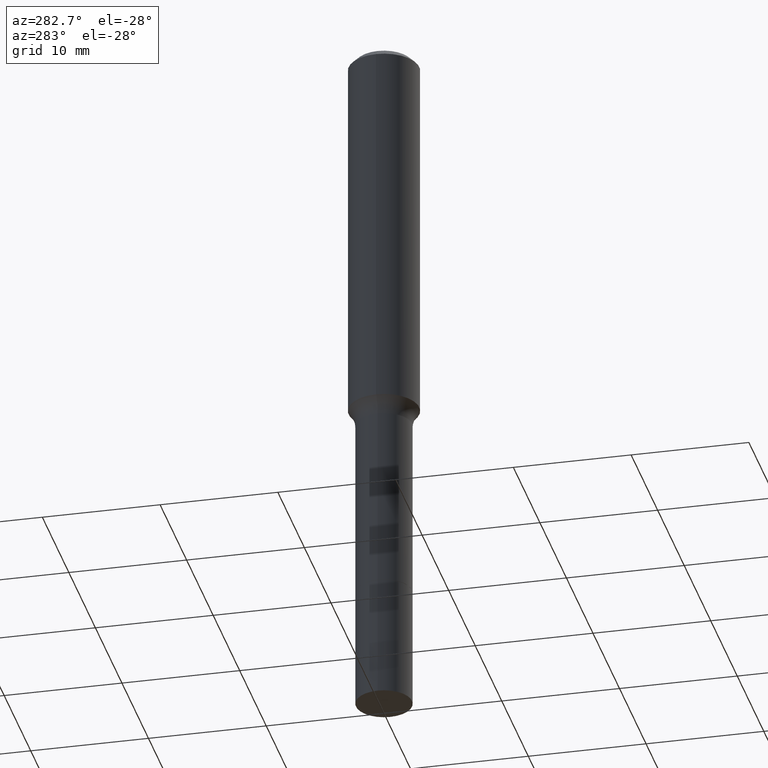
[diagram: clean part render]
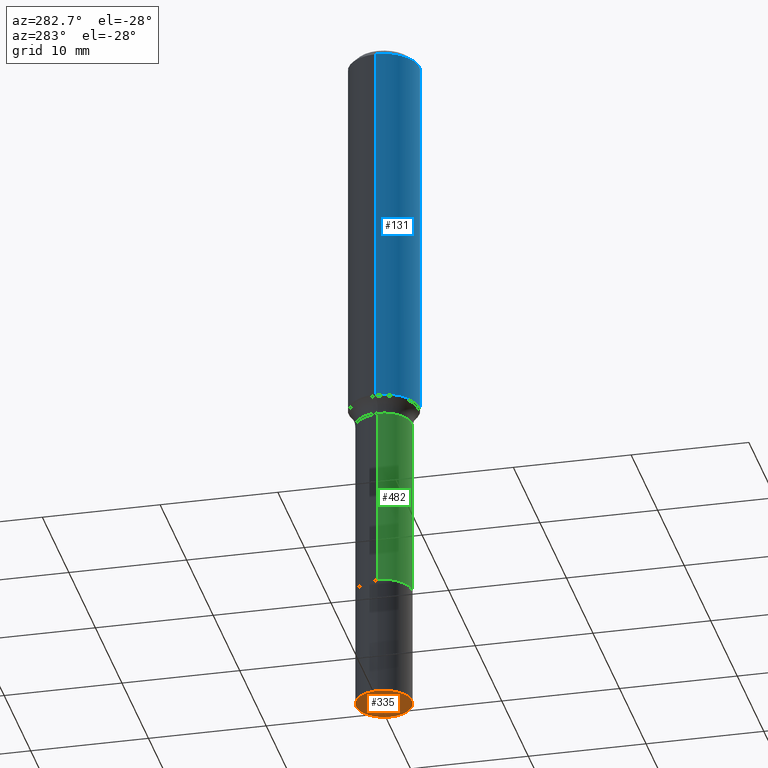
[diagram: same view with three faces highlighted in distinct colors, each labeled with its STEP entity id]
A machine part, auxiliary view with three faces highlighted in distinct colors.
Their STEP definitions:

[orange] entity #335 — the highlighted planar face has unit normal (0, -0, -1).
#19 = EDGE_CURVE ( 'NONE', #376, #143, #399, .T. ) ;
#30 = DIRECTION ( 'NONE',  ( 1.000000000000000000, -6.982962677686273021E-15, 0.000000000000000000 ) ) ;
#34 = CARTESIAN_POINT ( 'NONE',  ( 5.776686413970529753E-29, -8.247577218615279626E-15, -2.362200000000000077 ) ) ;
#60 = CARTESIAN_POINT ( 'NONE',  ( 5.776686413970529753E-29, -8.247577218615279626E-15, -2.362200000000000077 ) ) ;
#128 = DIRECTION ( 'NONE',  ( -2.445468806185136597E-29, 3.491481338843145583E-15, 1.000000000000000000 ) ) ;
#143 = VERTEX_POINT ( 'NONE', #293 ) ;
#183 = CARTESIAN_POINT ( 'NONE',  ( 5.776686413970529753E-29, -8.247577218615279626E-15, -2.362200000000000077 ) ) ;
#208 = AXIS2_PLACEMENT_3D ( 'NONE', #60, #128, #448 ) ;
#228 = DIRECTION ( 'NONE',  ( 2.438088387897960049E-29, -3.491481338843145188E-15, -1.000000000000000000 ) ) ;
#262 = AXIS2_PLACEMENT_3D ( 'NONE', #183, #228, #385 ) ;
#276 = EDGE_LOOP ( 'NONE', ( #316, #507 ) ) ;
#293 = CARTESIAN_POINT ( 'NONE',  ( -0.09375000000000013878, -6.867435470046759977E-15, -2.362200000000000077 ) ) ;
#294 = EDGE_CURVE ( 'NONE', #143, #376, #496, .T. ) ;
#298 = DIRECTION ( 'NONE',  ( -2.445468806185136597E-29, 3.491481338843145583E-15, 1.000000000000000000 ) ) ;
#316 = ORIENTED_EDGE ( 'NONE', *, *, #19, .F. ) ;
#335 = ADVANCED_FACE ( 'NONE', ( #510 ), #473, .T. ) ;
#376 = VERTEX_POINT ( 'NONE', #389 ) ;
#385 = DIRECTION ( 'NONE',  ( -1.000000000000000000, 6.982962677686265922E-15, -4.876176775795935793E-29 ) ) ;
#389 = CARTESIAN_POINT ( 'NONE',  ( 0.09375000000000013878, -8.902229969648367919E-15, -2.362200000000000077 ) ) ;
#399 = CIRCLE ( 'NONE', #460, 0.09375000000000013878 ) ;
#448 = DIRECTION ( 'NONE',  ( 1.000000000000000000, -6.982962677686273021E-15, 0.000000000000000000 ) ) ;
#460 = AXIS2_PLACEMENT_3D ( 'NONE', #34, #298, #30 ) ;
#473 = PLANE ( 'NONE',  #262 ) ;
#496 = CIRCLE ( 'NONE', #208, 0.09375000000000013878 ) ;
#507 = ORIENTED_EDGE ( 'NONE', *, *, #294, .F. ) ;
#510 = FACE_OUTER_BOUND ( 'NONE', #276, .T. ) ;

[blue] entity #131 — the highlighted cylindrical surface (edge-blend (fillet) strip) has radius 2.9997 mm, axis along (-0, 0, 1).
#25 = VECTOR ( 'NONE', #266, 39.37007874015748143 ) ;
#26 = DIRECTION ( 'NONE',  ( -2.445468806185136597E-29, 3.491481338843145583E-15, 1.000000000000000000 ) ) ;
#29 = EDGE_CURVE ( 'NONE', #341, #238, #459, .T. ) ;
#41 = DIRECTION ( 'NONE',  ( 1.000000000000000000, -6.982962677686266711E-15, 0.000000000000000000 ) ) ;
#55 = CARTESIAN_POINT ( 'NONE',  ( 0.1180999999999999966, -9.071566814582237199E-16, -0.02362000000000014435 ) ) ;
#59 = EDGE_CURVE ( 'NONE', #430, #341, #217, .T. ) ;
#75 = CYLINDRICAL_SURFACE ( 'NONE', #157, 0.1181000000000000660 ) ;
#92 = DIRECTION ( 'NONE',  ( 1.000000000000000000, -6.982962677686266711E-15, 4.876176775795936353E-29 ) ) ;
#93 = EDGE_CURVE ( 'NONE', #430, #155, #511, .T. ) ;
#98 = CARTESIAN_POINT ( 'NONE',  ( 0.1181000000000000660, -8.246878922347485584E-16, 5.758764772215003944E-30 ) ) ;
#109 = CARTESIAN_POINT ( 'NONE',  ( -0.1181000000000000660, 8.391509709326787887E-16, -5.809262341591047287E-30 ) ) ;
#125 = CARTESIAN_POINT ( 'NONE',  ( -0.1180999999999999966, -1.437635253250308379E-15, -0.02362000000000014435 ) ) ;
#131 = ADVANCED_FACE ( 'NONE', ( #312 ), #75, .T. ) ;
#137 = CARTESIAN_POINT ( 'NONE',  ( 0.000000000000000000, 0.000000000000000000, 0.000000000000000000 ) ) ;
#140 = CARTESIAN_POINT ( 'NONE',  ( -0.1181000000000001493, -3.631952688209820286E-15, -1.280574983861703320 ) ) ;
#148 = ORIENTED_EDGE ( 'NONE', *, *, #93, .F. ) ;
#151 = ORIENTED_EDGE ( 'NONE', *, *, #59, .T. ) ;
#155 = VERTEX_POINT ( 'NONE', #125 ) ;
#157 = AXIS2_PLACEMENT_3D ( 'NONE', #137, #213, #92 ) ;
#178 = DIRECTION ( 'NONE',  ( -2.445468806185136877E-29, 3.491481338843145188E-15, 1.000000000000000000 ) ) ;
#180 = DIRECTION ( 'NONE',  ( 1.000000000000000000, -6.982962677686264344E-15, 0.000000000000000000 ) ) ;
#212 = AXIS2_PLACEMENT_3D ( 'NONE', #416, #26, #180 ) ;
#213 = DIRECTION ( 'NONE',  ( -2.445468806185136597E-29, 3.491481338843145583E-15, 1.000000000000000000 ) ) ;
#217 = CIRCLE ( 'NONE', #212, 0.1181000000000001493 ) ;
#229 = ORIENTED_EDGE ( 'NONE', *, *, #323, .F. ) ;
#235 = EDGE_LOOP ( 'NONE', ( #148, #151, #349, #229 ) ) ;
#238 = VERTEX_POINT ( 'NONE', #55 ) ;
#266 = DIRECTION ( 'NONE',  ( -2.445468806185136877E-29, 3.491481338843145188E-15, 1.000000000000000000 ) ) ;
#312 = FACE_OUTER_BOUND ( 'NONE', #235, .T. ) ;
#323 = EDGE_CURVE ( 'NONE', #155, #238, #478, .T. ) ;
#336 = VECTOR ( 'NONE', #178, 39.37007874015748143 ) ;
#341 = VERTEX_POINT ( 'NONE', #514 ) ;
#348 = AXIS2_PLACEMENT_3D ( 'NONE', #371, #428, #41 ) ;
#349 = ORIENTED_EDGE ( 'NONE', *, *, #29, .T. ) ;
#371 = CARTESIAN_POINT ( 'NONE',  ( 5.776197320209328408E-31, -8.246878922347560526E-17, -0.02362000000000014435 ) ) ;
#416 = CARTESIAN_POINT ( 'NONE',  ( 3.131606177014830637E-29, -4.471103659142499272E-15, -1.280574983861703320 ) ) ;
#428 = DIRECTION ( 'NONE',  ( -2.445468806185136597E-29, 3.491481338843145583E-15, 1.000000000000000000 ) ) ;
#430 = VERTEX_POINT ( 'NONE', #140 ) ;
#459 = LINE ( 'NONE', #98, #336 ) ;
#478 = CIRCLE ( 'NONE', #348, 0.1180999999999999966 ) ;
#511 = LINE ( 'NONE', #109, #25 ) ;
#514 = CARTESIAN_POINT ( 'NONE',  ( 0.1181000000000001493, -5.295791551377248324E-15, -1.280574983861703320 ) ) ;

[green] entity #482 — the highlighted cylindrical surface (edge-blend (fillet) strip) has radius 2.3812 mm, axis along (-0, 0, 1).
#7 = CYLINDRICAL_SURFACE ( 'NONE', #48, 0.09374999999999997224 ) ;
#47 = EDGE_CURVE ( 'NONE', #480, #64, #139, .T. ) ;
#48 = AXIS2_PLACEMENT_3D ( 'NONE', #281, #206, #329 ) ;
#64 = VERTEX_POINT ( 'NONE', #270 ) ;
#66 = EDGE_LOOP ( 'NONE', ( #469, #396, #297, #227 ) ) ;
#139 = CIRCLE ( 'NONE', #440, 0.09374999999999994449 ) ;
#150 = DIRECTION ( 'NONE',  ( -2.445468806185136597E-29, 3.491481338843145583E-15, 1.000000000000000000 ) ) ;
#156 = DIRECTION ( 'NONE',  ( -2.445468806185136877E-29, 3.491481338843145188E-15, 1.000000000000000000 ) ) ;
#168 = CARTESIAN_POINT ( 'NONE',  ( 4.775266937837716483E-29, -6.817815610359010617E-15, -1.952700000000000102 ) ) ;
#206 = DIRECTION ( 'NONE',  ( -2.445468806185136597E-29, 3.491481338843145583E-15, 1.000000000000000000 ) ) ;
#209 = CARTESIAN_POINT ( 'NONE',  ( -0.09374999999999997224, 6.661338147750937270E-16, -4.611501647113972594E-30 ) ) ;
#214 = DIRECTION ( 'NONE',  ( 1.000000000000000000, -6.982962677686261189E-15, 0.000000000000000000 ) ) ;
#221 = VECTOR ( 'NONE', #156, 39.37007874015748143 ) ;
#227 = ORIENTED_EDGE ( 'NONE', *, *, #47, .F. ) ;
#242 = CIRCLE ( 'NONE', #274, 0.09375000000000001388 ) ;
#246 = CARTESIAN_POINT ( 'NONE',  ( -0.09375000000000001388, -5.078924154224359757E-15, -1.952700000000000102 ) ) ;
#255 = DIRECTION ( 'NONE',  ( 1.000000000000000000, -6.982962677686266711E-15, 0.000000000000000000 ) ) ;
#270 = CARTESIAN_POINT ( 'NONE',  ( 0.09374999999999994449, -5.326953078672984249E-15, -1.338200000000000056 ) ) ;
#274 = AXIS2_PLACEMENT_3D ( 'NONE', #168, #290, #214 ) ;
#280 = CARTESIAN_POINT ( 'NONE',  ( -0.09374999999999994449, -5.078924154224360545E-15, -1.338200000000000056 ) ) ;
#281 = CARTESIAN_POINT ( 'NONE',  ( 0.000000000000000000, 0.000000000000000000, 0.000000000000000000 ) ) ;
#290 = DIRECTION ( 'NONE',  ( -2.445468806185136597E-29, 3.491481338843145583E-15, 1.000000000000000000 ) ) ;
#297 = ORIENTED_EDGE ( 'NONE', *, *, #412, .T. ) ;
#302 = VERTEX_POINT ( 'NONE', #246 ) ;
#322 = EDGE_CURVE ( 'NONE', #302, #466, #242, .T. ) ;
#327 = CARTESIAN_POINT ( 'NONE',  ( 0.09375000000000001388, -7.472468361392097332E-15, -1.952700000000000102 ) ) ;
#329 = DIRECTION ( 'NONE',  ( 1.000000000000000000, -6.982962677686266711E-15, 4.876176775795935793E-29 ) ) ;
#359 = LINE ( 'NONE', #209, #221 ) ;
#380 = CARTESIAN_POINT ( 'NONE',  ( 3.272526356436949336E-29, -4.672300327639896745E-15, -1.338200000000000056 ) ) ;
#382 = CARTESIAN_POINT ( 'NONE',  ( 0.09374999999999997224, -6.546527510330873069E-16, 4.571415727308688405E-30 ) ) ;
#394 = DIRECTION ( 'NONE',  ( -2.445468806185136877E-29, 3.491481338843145188E-15, 1.000000000000000000 ) ) ;
#396 = ORIENTED_EDGE ( 'NONE', *, *, #322, .T. ) ;
#412 = EDGE_CURVE ( 'NONE', #466, #64, #431, .T. ) ;
#431 = LINE ( 'NONE', #382, #432 ) ;
#432 = VECTOR ( 'NONE', #394, 39.37007874015748143 ) ;
#438 = FACE_OUTER_BOUND ( 'NONE', #66, .T. ) ;
#440 = AXIS2_PLACEMENT_3D ( 'NONE', #380, #150, #255 ) ;
#466 = VERTEX_POINT ( 'NONE', #327 ) ;
#469 = ORIENTED_EDGE ( 'NONE', *, *, #479, .F. ) ;
#479 = EDGE_CURVE ( 'NONE', #302, #480, #359, .T. ) ;
#480 = VERTEX_POINT ( 'NONE', #280 ) ;
#482 = ADVANCED_FACE ( 'NONE', ( #438 ), #7, .T. ) ;